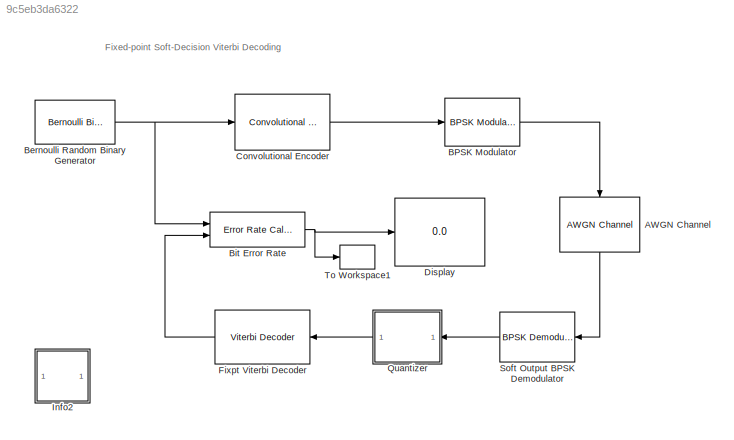
MODEL slx_9c5eb3da6322
KIND model
CONFIG InitFcn = ; 
CONFIG PreLoadFcn = maxNumErrs = 100;\nmaxNumBits = 1e6;\nEbNo = 4;\n
CONFIG StartFcn = ; 
CONFIG StopFcn = ; 
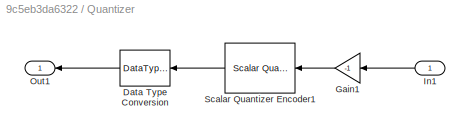
BLOCK [SubSystem]  Quantizer
  Ports = [1, 1]
  RequestExecContextInheritance = off
BLOCK [DataTypeConversion]  Quantizer/Data Type Conversion
  OutDataTypeStr = fixdt(0,3,0)
  RndMeth = Floor
  SaturateOnIntegerOverflow = off
BLOCK [Gain]  Quantizer/Gain1
  Gain = -1
  OutDataTypeStr = Inherit: Inherit via internal rule
  ParamDataTypeStr = Inherit: Inherit via internal rule
  SaturateOnIntegerOverflow = off
BLOCK [Inport]  Quantizer/In1
  IconDisplay = Port number
BLOCK [Outport]  Quantizer/Out1
  IconDisplay = Port number
BLOCK [Reference]  Quantizer/Scalar Quantizer Encoder1  REF=dspquant2/Scalar Quantizer
Encoder
  BBoundary = [-6:2:6]/4
  Ports = [1, 1]
  SearchMethod = Linear
  SourceBlock = dspquant2/Scalar Quantizer\nEncoder
  SourceType = Scalar Quantizer Encoder
  UBoundary = [-3:3]
  additionalParams = off
  allowOverrides = on
  codebook = [1.5:9.5]
  idtype = uint8
  invalidin = Clip
  outQError = off
  outQU = off
  outStatus = off
  overflowMode = off
  paramSrc = Specify via dialog
  partType = Unbounded
  roundingMode = Floor
  tieBreakRule = Choose the higher index
BLOCK [Reference] AWGN Channel  REF=commchan3/AWGN
Channel
  EbNodB = EbNo - 10*log10(2)
  EsNodB = 1
  InputProcessing = Columns as channels (frame based)
  Ports = [1, 1]
  Ps = 1
  SNRdB = 10
  SourceBlock = commchan3/AWGN\nChannel
  SourceType = AWGN Channel
  Tsym = 0.005
  UserDataPersistent = on
  bitsPerSym = 1
  noiseMode = Signal to noise ratio  (Eb/No)
  seed = 113
  variance = (1*0.005)/((1/200)*10^(EbNo/10))
BLOCK [Reference] BPSK Modulator  REF=commdigbbndpm3/BPSK
Modulator
Baseband
  Ph = 0
  Ports = [1, 1]
  SourceBlock = commdigbbndpm3/BPSK\nModulator\nBaseband
  SourceType = BPSK Modulator Baseband
  outDtype = double
  outFracLen = 15
  outFracLenMode = Best precision
  outUDDataType = sfix(16)
  outWordLen = 16
BLOCK [Reference] Bernoulli Random Binary Generator  REF=commrandsrc2/Bernoulli Binary
Generator
  P = 0.5
  Ports = [0, 1]
  SourceBlock = commrandsrc2/Bernoulli Binary\nGenerator
  SourceType = Bernoulli Binary Generator
  Ts = 0.01
  frameBased = on
  orient = off
  outDataType = boolean
  sampPerFrame = 100
  seed = 911
BLOCK [Reference] Bit Error Rate  REF=commsink2/Error Rate
Calculation
  N = 56
  PMode = Port
  Ports = [2, 1]
  RsMode2 = off
  SourceBlock = commsink2/Error Rate\nCalculation
  SourceType = Error Rate Calculation
  WsName = ErrorVec
  cp_mode = Entire frame
  maxBits = maxNumBits
  numErr = maxNumErrs
  st_delay = 0
  stop = on
  subframe = []
BLOCK [Reference] Convolutional Encoder  REF=commcnvcod2/Convolutional
Encoder
  DelayedResetAction = off
  Ports = [1, 1]
  SourceBlock = commcnvcod2/Convolutional\nEncoder
  SourceType = Convolutional Encoder
  hasFinStPort = off
  hasIniStPort = off
  opMode = Continuous
  punctureVector = [1 1 0 1 1 0].'
  reset = Unused parameter value
  trellis = poly2trellis(9, [561 753])
  usePuncVector = off
BLOCK [Display] Display
  Decimation = 1
  Ports = [1]
BLOCK [Reference] Fixpt Viterbi Decoder  REF=commcnvcod2/Viterbi Decoder
  Ports = [1, 1]
  SourceBlock = commcnvcod2/Viterbi Decoder
  SourceType = Viterbi Decoder
  dectype = Soft decision
  delayedResetAction = off
  erasures = off
  isPunctured = off
  nsdecb = 3
  opmode = Continuous
  outDataType = boolean
  punctureVector = [1 1 0 1 1 0].'
  reset = off
  runSigValErrCheck = off
  smWordLength = 6
  tbdepth = 56
  trellis = poly2trellis(9, [561 753])
BLOCK [SubSystem] Info2
  AncestorBlock = commblksprivate/Info
  OpenFcn = helpview([docroot '/toolbox/comm/comm.map'], 'doc_fixpt_vitsoftdec')
  Ports = []
  RequestExecContextInheritance = off
BLOCK [Reference] Soft Output BPSK Demodulator  REF=commdigbbndpm3/BPSK
Demodulator
Baseband
  DecType = Log-likelihood ratio
  Ph = 0
  Ports = [1, 1]
  SourceBlock = commdigbbndpm3/BPSK\nDemodulator\nBaseband
  SourceType = BPSK Demodulator Baseband
  VarSource = Dialog
  Variance = 1/(10^((EbNo-10*log10(2))/10))
  derotateFactorDTMode = Same word length as input
  derotateFactorWordLen = 16
  outDtype = double
BLOCK [ToWorkspace] To Workspace1
  MaxDataPoints = 1
  Ports = [1]
  SampleTime = -1
  VariableName = BER
ANNOTATION (root): Fixed-point Soft-Decision Viterbi Decoding
LINE  Quantizer/Data Type Conversion:1 ->  Quantizer/Out1:1
LINE  Quantizer/Gain1:1 ->  Quantizer/Scalar Quantizer Encoder1:1
LINE  Quantizer/In1:1 ->  Quantizer/Gain1:1
LINE  Quantizer/Scalar Quantizer Encoder1:1 ->  Quantizer/Data Type Conversion:1
LINE  Quantizer:1 -> Fixpt Viterbi Decoder:1
LINE AWGN Channel:1 -> Soft Output BPSK Demodulator:1
LINE BPSK Modulator:1 -> AWGN Channel:1
NET Bernoulli Random Binary Generator:1 -> Bit Error Rate:1, Convolutional Encoder:1
NET Bit Error Rate:1 -> Display:1, To Workspace1:1
LINE Convolutional Encoder:1 -> BPSK Modulator:1
LINE Fixpt Viterbi Decoder:1 -> Bit Error Rate:2
LINE Soft Output BPSK Demodulator:1 ->  Quantizer:1
note: NET lines group one-source signal fan-out (src -> all destinations, sorted); 1:1 wires keep LINE
